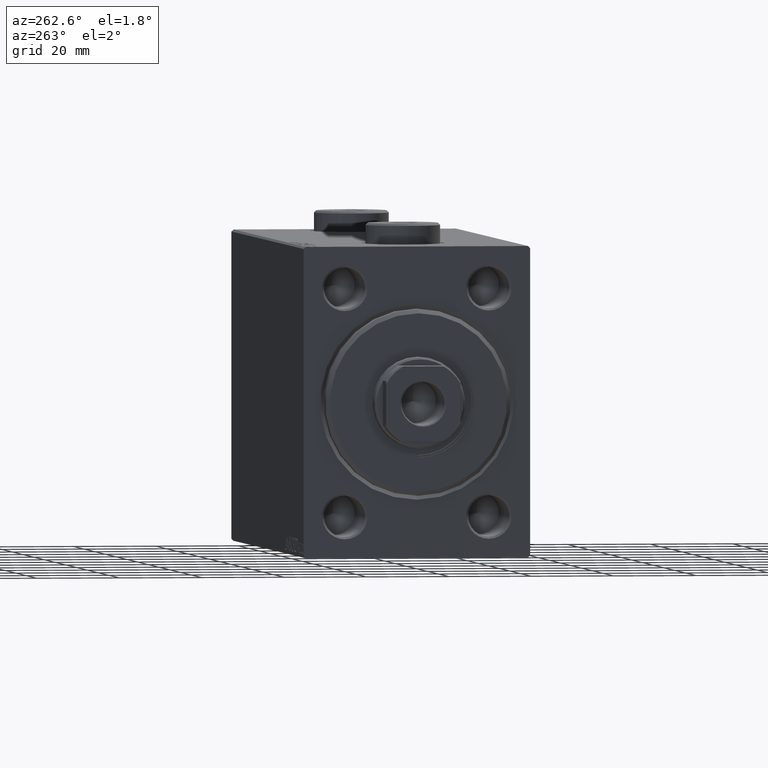
[diagram: clean part render]
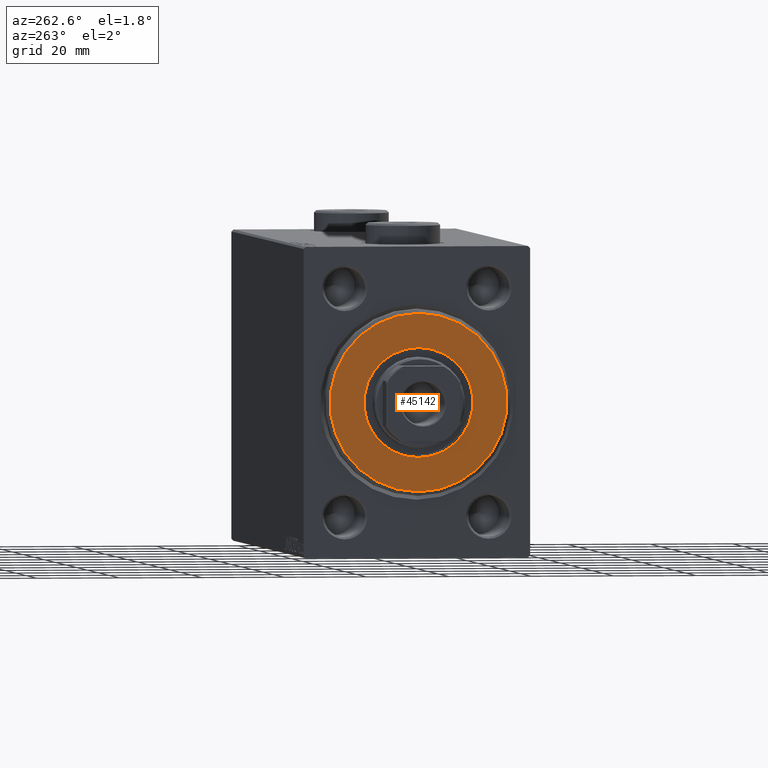
[diagram: same view with one face highlighted and labeled with its STEP entity id]
A machine part, auxiliary view. The second image highlights one B-rep face of the part: STEP entity #45142.
In plain terms, the highlighted planar face has unit normal (-1, 0, 0).
Its self-contained STEP definition (entity closure, byte-faithful):
#1252 = CARTESIAN_POINT ( 'NONE',  ( 3.000000000000000000, 0.000000000000000000, 0.000000000000000000 ) ) ;
#2026 = CIRCLE ( 'NONE', #4228, 13.25000000000000178 ) ;
#3783 = VERTEX_POINT ( 'NONE', #32726 ) ;
#3837 = DIRECTION ( 'NONE',  ( 0.000000000000000000, 0.000000000000000000, -1.000000000000000000 ) ) ;
#3917 = ORIENTED_EDGE ( 'NONE', *, *, #10680, .F. ) ;
#3988 = ORIENTED_EDGE ( 'NONE', *, *, #35604, .T. ) ;
#4228 = AXIS2_PLACEMENT_3D ( 'NONE', #16837, #23303, #43815 ) ;
#4478 = DIRECTION ( 'NONE',  ( 1.000000000000000000, -0.000000000000000000, 0.000000000000000000 ) ) ;
#5933 = DIRECTION ( 'NONE',  ( 1.000000000000000000, -0.000000000000000000, 0.000000000000000000 ) ) ;
#6367 = EDGE_LOOP ( 'NONE', ( #7128, #3988 ) ) ;
#6859 = CARTESIAN_POINT ( 'NONE',  ( 3.000000000000000000, 2.694222958124177598E-15, -21.50000000000000355 ) ) ;
#7128 = ORIENTED_EDGE ( 'NONE', *, *, #38683, .T. ) ;
#7939 = PLANE ( 'NONE',  #35640 ) ;
#10680 = EDGE_CURVE ( 'NONE', #34567, #26865, #2026, .T. ) ;
#10764 = DIRECTION ( 'NONE',  ( 1.000000000000000000, 0.000000000000000000, 0.000000000000000000 ) ) ;
#12572 = CIRCLE ( 'NONE', #38355, 21.50000000000000355 ) ;
#15079 = FACE_OUTER_BOUND ( 'NONE', #6367, .T. ) ;
#15647 = EDGE_LOOP ( 'NONE', ( #3917, #26933 ) ) ;
#16837 = CARTESIAN_POINT ( 'NONE',  ( 3.000000000000000000, 0.000000000000000000, 0.000000000000000000 ) ) ;
#18537 = DIRECTION ( 'NONE',  ( 0.000000000000000000, 0.000000000000000000, -1.000000000000000000 ) ) ;
#19998 = DIRECTION ( 'NONE',  ( 0.000000000000000000, 0.000000000000000000, -1.000000000000000000 ) ) ;
#20009 = AXIS2_PLACEMENT_3D ( 'NONE', #38232, #10764, #3837 ) ;
#20693 = CARTESIAN_POINT ( 'NONE',  ( 3.000000000000000000, 0.000000000000000000, 0.000000000000000000 ) ) ;
#20755 = CIRCLE ( 'NONE', #20009, 13.25000000000000178 ) ;
#21261 = CARTESIAN_POINT ( 'NONE',  ( 3.000000000000000000, 0.000000000000000000, 0.000000000000000000 ) ) ;
#21944 = DIRECTION ( 'NONE',  ( 0.000000000000000000, 0.000000000000000000, -1.000000000000000000 ) ) ;
#22980 = AXIS2_PLACEMENT_3D ( 'NONE', #21261, #39937, #21944 ) ;
#23303 = DIRECTION ( 'NONE',  ( 1.000000000000000000, 0.000000000000000000, 0.000000000000000000 ) ) ;
#26865 = VERTEX_POINT ( 'NONE', #32872 ) ;
#26933 = ORIENTED_EDGE ( 'NONE', *, *, #27672, .F. ) ;
#27672 = EDGE_CURVE ( 'NONE', #26865, #34567, #20755, .T. ) ;
#32726 = CARTESIAN_POINT ( 'NONE',  ( 3.000000000000000000, 0.000000000000000000, 21.50000000000000355 ) ) ;
#32872 = CARTESIAN_POINT ( 'NONE',  ( 3.000000000000000000, 1.622657008870243277E-15, 13.25000000000000178 ) ) ;
#33066 = FACE_BOUND ( 'NONE', #15647, .T. ) ;
#34567 = VERTEX_POINT ( 'NONE', #41687 ) ;
#35604 = EDGE_CURVE ( 'NONE', #44678, #3783, #12572, .T. ) ;
#35640 = AXIS2_PLACEMENT_3D ( 'NONE', #1252, #4478, #18537 ) ;
#38232 = CARTESIAN_POINT ( 'NONE',  ( 3.000000000000000000, 0.000000000000000000, 0.000000000000000000 ) ) ;
#38355 = AXIS2_PLACEMENT_3D ( 'NONE', #20693, #5933, #19998 ) ;
#38683 = EDGE_CURVE ( 'NONE', #3783, #44678, #39164, .T. ) ;
#39164 = CIRCLE ( 'NONE', #22980, 21.50000000000000355 ) ;
#39937 = DIRECTION ( 'NONE',  ( 1.000000000000000000, -0.000000000000000000, 0.000000000000000000 ) ) ;
#41687 = CARTESIAN_POINT ( 'NONE',  ( 3.000000000000000000, 0.000000000000000000, -13.25000000000000178 ) ) ;
#43815 = DIRECTION ( 'NONE',  ( 0.000000000000000000, 0.000000000000000000, -1.000000000000000000 ) ) ;
#44678 = VERTEX_POINT ( 'NONE', #6859 ) ;
#45142 = ADVANCED_FACE ( 'NONE', ( #15079, #33066 ), #7939, .T. ) ;